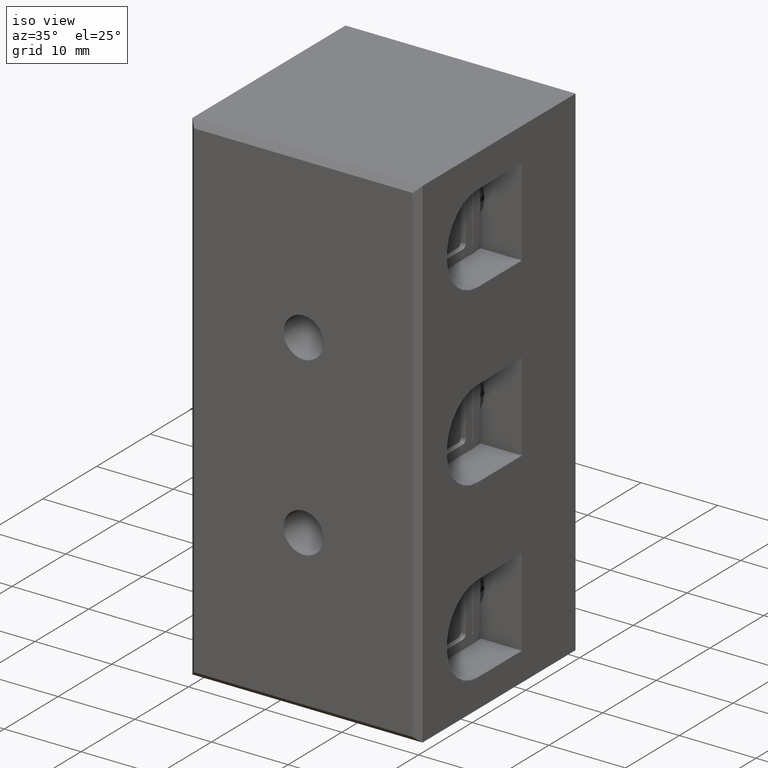
[diagram: clean part render]
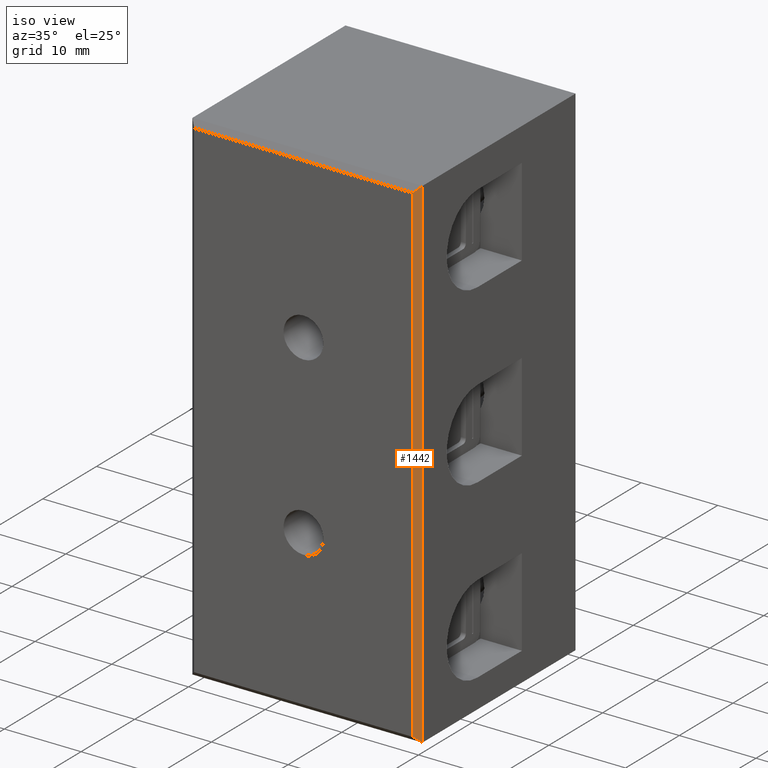
[diagram: same view with one face highlighted and labeled with its STEP entity id]
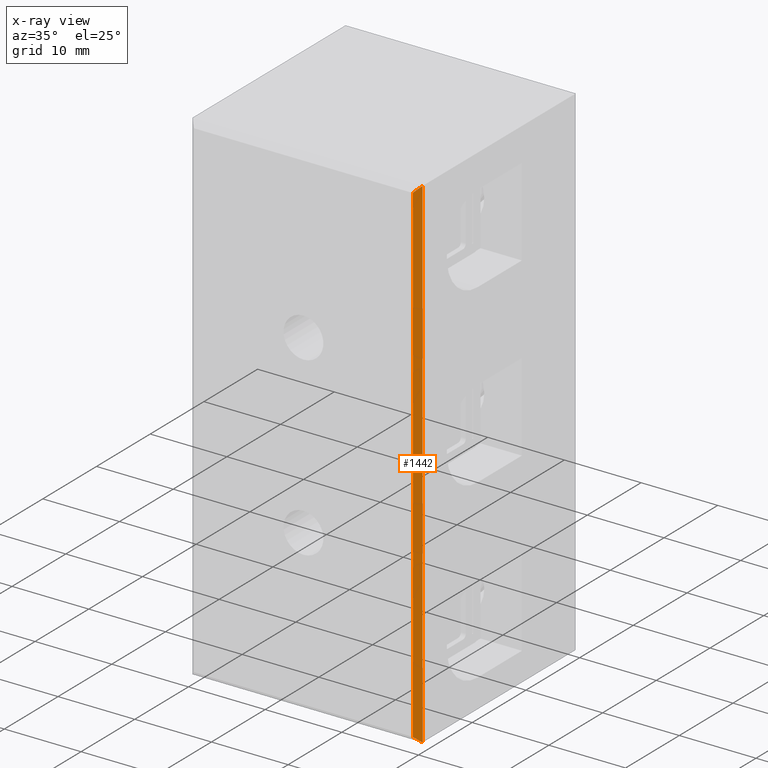
[diagram: x-ray of the same camera — body ghosted, the highlighted face saturated]
A machine part, iso view. The second image highlights one B-rep face of the part: STEP entity #1442.
The next image is the same camera in x-ray: the body ghosted, the highlighted face saturated — about 0% of this face is hidden behind the body in this view.
In plain terms, the highlighted planar face has unit normal (-0.7071, 0.7071, 0).
Its self-contained STEP definition (entity closure, byte-faithful):
#1096 = CARTESIAN_POINT ( 'NONE',  ( 30.00000000000001400, 0.7500000000000033300, 65.59999999999999400 ) ) ;
#1109 = CARTESIAN_POINT ( 'NONE',  ( 30.00000000000000400, 0.7500000000000021100, -1.334923924872790200E-015 ) ) ;
#1113 = CARTESIAN_POINT ( 'NONE',  ( 29.25000000000000700, 1.876143545934651800E-015, 0.7500000000000073300 ) ) ;
#1118 = CARTESIAN_POINT ( 'NONE',  ( 29.25000000000000400, 8.074996699065094000E-016, 64.85000000000000900 ) ) ;
#1442 = ADVANCED_FACE ( 'NONE', ( #2785 ), #2776, .F. ) ;
#1769 = EDGE_CURVE ( 'NONE', #9189, #9178, #2218, .T. ) ;
#1780 = EDGE_CURVE ( 'NONE', #9174, #9189, #2202, .T. ) ;
#1799 = EDGE_CURVE ( 'NONE', #9199, #9178, #2260, .T. ) ;
#1803 = EDGE_CURVE ( 'NONE', #9174, #9199, #2291, .T. ) ;
#2194 = CARTESIAN_POINT ( 'NONE',  ( 29.25000000000000400, -1.771745013573883300E-016, 64.85000000000002300 ) ) ;
#2195 = DIRECTION ( 'NONE',  ( 0.5773502691896255100, 0.5773502691896264000, 0.5773502691896255100 ) ) ;
#2199 = DIRECTION ( 'NONE',  ( -5.288791085295143700E-017, 5.288791085295143700E-017, -1.000000000000000000 ) ) ;
#2202 = LINE ( 'NONE', #2194, #7746 ) ;
#2218 = LINE ( 'NONE', #2222, #7740 ) ;
#2222 = CARTESIAN_POINT ( 'NONE',  ( 30.00000000000000400, 0.7500000000000050000, 0.0000000000000000000 ) ) ;
#2260 = LINE ( 'NONE', #2263, #7807 ) ;
#2263 = CARTESIAN_POINT ( 'NONE',  ( 29.25000000000001400, -5.854691731421724700E-015, 0.7500000000000065500 ) ) ;
#2284 = DIRECTION ( 'NONE',  ( 0.5773502691896208500, 0.5773502691896282800, -0.5773502691896282800 ) ) ;
#2291 = LINE ( 'NONE', #2313, #7779 ) ;
#2313 = CARTESIAN_POINT ( 'NONE',  ( 29.25000000000000400, 0.0000000000000000000, 65.59999999999999400 ) ) ;
#2318 = DIRECTION ( 'NONE',  ( -0.0000000000000000000, 0.0000000000000000000, -1.000000000000000000 ) ) ;
#2776 = PLANE ( 'NONE',  #6759 ) ;
#2778 = CARTESIAN_POINT ( 'NONE',  ( 30.00000000000000000, 0.7500000000000006700, 0.0000000000000000000 ) ) ;
#2779 = DIRECTION ( 'NONE',  ( -0.7071067811865475700, 0.7071067811865475700, 7.479480081382312900E-017 ) ) ;
#2780 = DIRECTION ( 'NONE',  ( -0.7071067811865474600, -0.7071067811865474600, 0.0000000000000000000 ) ) ;
#2785 = FACE_OUTER_BOUND ( 'NONE', #4320, .T. ) ;
#4320 = EDGE_LOOP ( 'NONE', ( #5551, #5555, #5548, #5561 ) ) ;
#5548 = ORIENTED_EDGE ( 'NONE', *, *, #1780, .F. ) ;
#5551 = ORIENTED_EDGE ( 'NONE', *, *, #1799, .T. ) ;
#5555 = ORIENTED_EDGE ( 'NONE', *, *, #1769, .F. ) ;
#5561 = ORIENTED_EDGE ( 'NONE', *, *, #1803, .T. ) ;
#6759 = AXIS2_PLACEMENT_3D ( 'NONE', #2778, #2779, #2780 ) ;
#7740 = VECTOR ( 'NONE', #2199, 1000.000000000000000 ) ;
#7746 = VECTOR ( 'NONE', #2195, 1000.000000000000000 ) ;
#7779 = VECTOR ( 'NONE', #2318, 1000.000000000000000 ) ;
#7807 = VECTOR ( 'NONE', #2284, 1000.000000000000100 ) ;
#9174 = VERTEX_POINT ( 'NONE', #1118 ) ;
#9178 = VERTEX_POINT ( 'NONE', #1109 ) ;
#9189 = VERTEX_POINT ( 'NONE', #1096 ) ;
#9199 = VERTEX_POINT ( 'NONE', #1113 ) ;